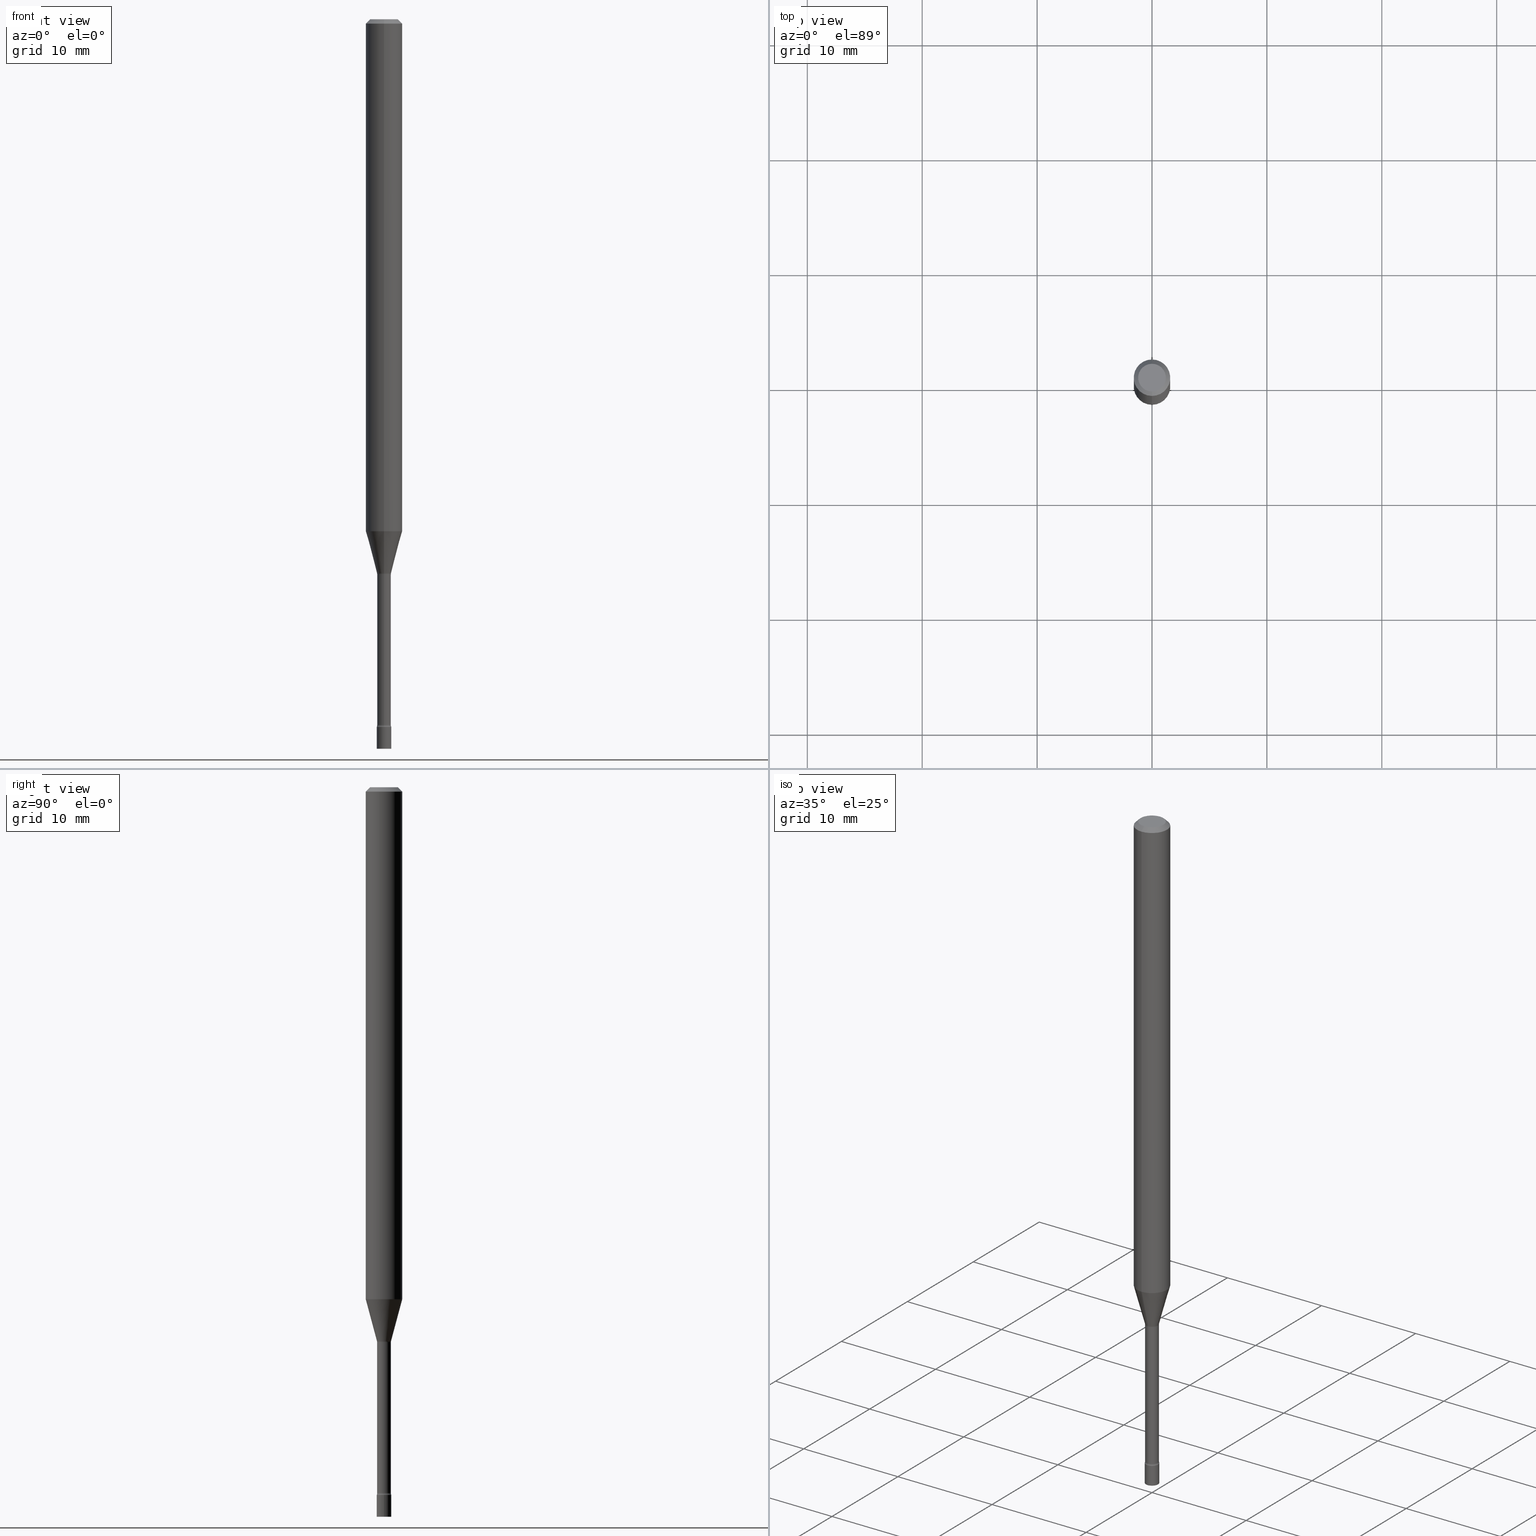
[diagram: canonical four-view strip — front | top / right | iso, engineering-drawing reading convention]
A machine part, canonical four-view strip (front | top / right | iso — engineering-drawing reading convention). The complete STEP part file that produces these views, byte-faithful:
ISO-10303-21;
HEADER;
FILE_DESCRIPTION (( 'STEP AP203' ),
    '1' );
FILE_NAME ('09665.STEP',
    '2024-03-09T00:34:02',
    ( '' ),
    ( '' ),
    'SwSTEP 2.0',
    'SolidWorks 2023',
    '' );
FILE_SCHEMA (( 'CONFIG_CONTROL_DESIGN' ));
ENDSEC;

DATA;
#1 = DIRECTION ( 'NONE',  ( -6.982962677686265922E-15, -1.000000000000000000, 4.370956789862821150E-15 ) ) ;
#2 = ADVANCED_FACE ( 'NONE', ( #114 ), #40, .T. ) ;
#3 = VECTOR ( 'NONE', #464, 39.37007874015748143 ) ;
#4 = DIRECTION ( 'NONE',  ( -2.445461215800332779E-29, 3.491492208706202500E-15, 1.000000000000000000 ) ) ;
#5 = CARTESIAN_POINT ( 'NONE',  ( 5.930261854998957144E-29, -8.466842246694628363E-15, -2.425000000000000266 ) ) ;
#6 = ORIENTED_EDGE ( 'NONE', *, *, #125, .T. ) ;
#7 = CARTESIAN_POINT ( 'NONE',  ( 0.000000000000000000, 0.000000000000000000, 0.000000000000000000 ) ) ;
#8 = VERTEX_POINT ( 'NONE', #197 ) ;
#9 = DIRECTION ( 'NONE',  ( 2.445461215800332779E-29, -3.491492208706202500E-15, -1.000000000000000000 ) ) ;
#10 = EDGE_CURVE ( 'NONE', #329, #120, #154, .T. ) ;
#11 = AXIS2_PLACEMENT_3D ( 'NONE', #16, #412, #128 ) ;
#12 = CARTESIAN_POINT ( 'NONE',  ( 5.930243448315807289E-29, -8.466868606112542088E-15, -2.425000000000000266 ) ) ;
#13 = VERTEX_POINT ( 'NONE', #268 ) ;
#14 = CARTESIAN_POINT ( 'NONE',  ( 3.668191823700506017E-31, -5.237238313059314424E-17, -0.01500000000000003067 ) ) ;
#15 = ADVANCED_FACE ( 'NONE', ( #480 ), #272, .T. ) ;
#16 = CARTESIAN_POINT ( 'NONE',  ( 7.070658513435405481E-46, -1.009508920058765553E-31, -2.891339460937380744E-17 ) ) ;
#17 = LINE ( 'NONE', #484, #362 ) ;
#18 = CARTESIAN_POINT ( 'NONE',  ( -1.676687031750274462E-16, -0.02401111260567061895, -1.898092501787273401 ) ) ;
#19 = CALENDAR_DATE ( 2024, 8, 3 ) ;
#20 = CARTESIAN_POINT ( 'NONE',  ( 0.000000000000000000, 0.000000000000000000, 0.000000000000000000 ) ) ;
#21 = AXIS2_PLACEMENT_3D ( 'NONE', #39, #406, #278 ) ;
#22 = CARTESIAN_POINT ( 'NONE',  ( 1.745740669422178045E-16, 0.02499999999999127226, -2.500000000000000000 ) ) ;
#23 = AXIS2_PLACEMENT_3D ( 'NONE', #369, #4, #44 ) ;
#24 = DATE_TIME_ROLE ( 'classification_date' ) ;
#25 = LENGTH_MEASURE_WITH_UNIT ( LENGTH_MEASURE( 0.02539999999999999897 ), #136 );
#26 = PERSON_AND_ORGANIZATION ( #104, #414 ) ;
#27 = DIRECTION ( 'NONE',  ( -2.445461215800332779E-29, 3.491492208706202500E-15, 1.000000000000000000 ) ) ;
#28 = AXIS2_PLACEMENT_3D ( 'NONE', #442, #324, #159 ) ;
#29 = EDGE_LOOP ( 'NONE', ( #440, #275, #458, #427 ) ) ;
#30 = ORIENTED_EDGE ( 'NONE', *, *, #222, .F. ) ;
#31 = ORIENTED_EDGE ( 'NONE', *, *, #60, .F. ) ;
#32 = CC_DESIGN_PERSON_AND_ORGANIZATION_ASSIGNMENT ( #477, #220, ( #42 ) ) ;
#33 = LINE ( 'NONE', #450, #45 ) ;
#34 = VERTEX_POINT ( 'NONE', #502 ) ;
#35 = CLOSED_SHELL ( 'NONE', ( #188, #15, #377, #59 ) ) ;
#36 = VERTEX_POINT ( 'NONE', #271 ) ;
#37 = APPROVAL_PERSON_ORGANIZATION ( #182, #92, #102 ) ;
#38 = DIRECTION ( 'NONE',  ( -2.445461215800332779E-29, 3.491492208706202500E-15, 1.000000000000000000 ) ) ;
#39 = CARTESIAN_POINT ( 'NONE',  ( 0.000000000000000000, 0.000000000000000000, 0.000000000000000000 ) ) ;
#40 = CYLINDRICAL_SURFACE ( 'NONE', #28, 0.06250000000000000000 ) ;
#41 = EDGE_CURVE ( 'NONE', #120, #295, #491, .T. ) ;
#42 = PRODUCT ( '09665', '09665', '', ( #503 ) ) ;
#43 = DIRECTION ( 'NONE',  ( -2.438088387897960049E-29, 3.491481338843145188E-15, 1.000000000000000000 ) ) ;
#44 = DIRECTION ( 'NONE',  ( -6.982962677686265133E-15, -1.000000000000000000, 0.000000000000000000 ) ) ;
#45 = VECTOR ( 'NONE', #520, 39.37007874015748143 ) ;
#46 = AXIS2_PLACEMENT_3D ( 'NONE', #417, #48, #372 ) ;
#47 = ORIENTED_EDGE ( 'NONE', *, *, #89, .T. ) ;
#48 = DIRECTION ( 'NONE',  ( -2.445461215800332779E-29, 3.491492208706202500E-15, 1.000000000000000000 ) ) ;
#49 = CARTESIAN_POINT ( 'NONE',  ( 4.364351673553919652E-16, 0.06249999999999995143, -0.01500000000000024751 ) ) ;
#50 = CARTESIAN_POINT ( 'NONE',  ( 7.070658513435405481E-46, -1.009508920058765553E-31, -2.891339460937380744E-17 ) ) ;
#51 = DIRECTION ( 'NONE',  ( -6.982962677686267499E-15, -1.000000000000000000, 0.000000000000000000 ) ) ;
#52 = VERTEX_POINT ( 'NONE', #387 ) ;
#53 = DIRECTION ( 'NONE',  ( 2.445461215800332779E-29, -3.491492208706202106E-15, -1.000000000000000000 ) ) ;
#54 = TOROIDAL_SURFACE ( 'NONE', #355, 0.03850000000000007583, 0.01499999999999998904 ) ;
#55 = EDGE_LOOP ( 'NONE', ( #79, #47, #407, #235 ) ) ;
#56 = APPLICATION_CONTEXT ( 'configuration controlled 3d designs of mechanical parts and assemblies' ) ;
#57 = FACE_OUTER_BOUND ( 'NONE', #228, .T. ) ;
#58 = LINE ( 'NONE', #219, #139 ) ;
#59 = ADVANCED_FACE ( 'NONE', ( #263 ), #96, .T. ) ;
#60 = EDGE_CURVE ( 'NONE', #397, #411, #260, .T. ) ;
#61 = PERSON_AND_ORGANIZATION ( #104, #414 ) ;
#62 = DIRECTION ( 'NONE',  ( -2.445461215800332779E-29, 3.491492208706202500E-15, 1.000000000000000000 ) ) ;
#63 = PERSON_AND_ORGANIZATION_ROLE ( 'classification_officer' ) ;
#64 = CIRCLE ( 'NONE', #308, 0.01500000000000001853 ) ;
#65 = CARTESIAN_POINT ( 'NONE',  ( 0.02500000000000000139, -8.641416313636785031E-15, -2.425000000000000266 ) ) ;
#66 = DATE_AND_TIME ( #264, #171 ) ;
#67 = CC_DESIGN_PERSON_AND_ORGANIZATION_ASSIGNMENT ( #149, #146, ( #454 ) ) ;
#68 =( NAMED_UNIT ( * ) PLANE_ANGLE_UNIT ( ) SI_UNIT ( $, .RADIAN. ) );
#69 = ORIENTED_EDGE ( 'NONE', *, *, #438, .T. ) ;
#70 = CARTESIAN_POINT ( 'NONE',  ( 5.914272527905344176E-29, -8.444013725215716224E-15, -2.418461651584689509 ) ) ;
#71 = AXIS2_PLACEMENT_3D ( 'NONE', #446, #241, #77 ) ;
#72 = CIRCLE ( 'NONE', #170, 0.01499999999999999424 ) ;
#73 = VECTOR ( 'NONE', #459, 39.37007874015748143 ) ;
#74 = DIMENSIONAL_EXPONENTS ( 1.000000000000000000, 0.000000000000000000, 0.000000000000000000, 0.000000000000000000, 0.000000000000000000, 0.000000000000000000, 0.000000000000000000 ) ;
#75 = CC_DESIGN_PERSON_AND_ORGANIZATION_ASSIGNMENT ( #511, #347, ( #454 ) ) ;
#76 = ORIENTED_EDGE ( 'NONE', *, *, #156, .T. ) ;
#77 = DIRECTION ( 'NONE',  ( -6.982962677686265922E-15, -1.000000000000000000, 3.483106191921935554E-15 ) ) ;
#78 = DIRECTION ( 'NONE',  ( -6.982962677686265922E-15, -1.000000000000000000, 0.000000000000000000 ) ) ;
#79 = ORIENTED_EDGE ( 'NONE', *, *, #305, .F. ) ;
#80 = CARTESIAN_POINT ( 'NONE',  ( 0.02500000000000000139, -1.745740669421566924E-16, 1.219044193948984123E-30 ) ) ;
#81 = EDGE_LOOP ( 'NONE', ( #274, #486, #312, #6 ) ) ;
#82 = DIRECTION ( 'NONE',  ( 2.445461215800332779E-29, -3.491492208706202500E-15, -1.000000000000000000 ) ) ;
#83 = AXIS2_PLACEMENT_3D ( 'NONE', #518, #319, #270 ) ;
#84 = AXIS2_PLACEMENT_3D ( 'NONE', #409, #364, #359 ) ;
#85 = ORIENTED_EDGE ( 'NONE', *, *, #504, .F. ) ;
#86 = DIRECTION ( 'NONE',  ( -1.000000000000000000, 6.982962677686265922E-15, -4.883557194083112340E-29 ) ) ;
#87 = DIRECTION ( 'NONE',  ( 1.000000000000000000, -6.982962677686265922E-15, 4.876176775795935793E-29 ) ) ;
#88 = ORIENTED_EDGE ( 'NONE', *, *, #517, .F. ) ;
#89 = EDGE_CURVE ( 'NONE', #8, #295, #273, .T. ) ;
#90 = CARTESIAN_POINT ( 'NONE',  ( 0.000000000000000000, 0.000000000000000000, 0.000000000000000000 ) ) ;
#91 = VERTEX_POINT ( 'NONE', #65 ) ;
#92 = APPROVAL ( #498, 'UNSPECIFIED' ) ;
#93 = CLOSED_SHELL ( 'NONE', ( #519, #351, #300, #441, #435, #331, #510, #2, #403, #415, #243, #334, #250, #229 ) ) ;
#94 = LOCAL_TIME ( 19, 34, 2.000000000000000000, #386 ) ;
#95 = COORDINATED_UNIVERSAL_TIME_OFFSET ( 5, 0, .BEHIND. ) ;
#96 = PLANE ( 'NONE',  #100 ) ;
#97 = MANIFOLD_SOLID_BREP ( 'Body-Move/Copy2[1]', #35 ) ;
#98 = DIRECTION ( 'NONE',  ( -2.445461215800333059E-29, 3.491492208706202106E-15, 1.000000000000000000 ) ) ;
#99 = COORDINATED_UNIVERSAL_TIME_OFFSET ( 5, 0, .BEHIND. ) ;
#100 = AXIS2_PLACEMENT_3D ( 'NONE', #22, #392, #180 ) ;
#101 = LOCAL_TIME ( 19, 34, 2.000000000000000000, #389 ) ;
#102 = APPROVAL_ROLE ( '' ) ;
#103 = EDGE_CURVE ( 'NONE', #13, #52, #303, .T. ) ;
#104 = PERSON ( 'UNSPECIFIED', 'UNSPECIFIED', 'UNSPECIFIED', ('UNSPECIFIED'), ('UNSPECIFIED'), ('UNSPECIFIED') ) ;
#105 = CALENDAR_DATE ( 2024, 8, 3 ) ;
#106 = ORIENTED_EDGE ( 'NONE', *, *, #479, .T. ) ;
#107 = EDGE_LOOP ( 'NONE', ( #371, #462, #166, #85 ) ) ;
#108 = CONICAL_SURFACE ( 'NONE', #413, 0.02401111260566398883, 0.2617993877991502960 ) ;
#109 = AXIS2_PLACEMENT_3D ( 'NONE', #430, #507, #310 ) ;
#110 = DIRECTION ( 'NONE',  ( -2.445461215800332779E-29, 3.491492208706202500E-15, 1.000000000000000000 ) ) ;
#111 = ORIENTED_EDGE ( 'NONE', *, *, #493, .T. ) ;
#112 = FACE_OUTER_BOUND ( 'NONE', #342, .T. ) ;
#113 = EDGE_CURVE ( 'NONE', #416, #122, #240, .T. ) ;
#114 = FACE_OUTER_BOUND ( 'NONE', #29, .T. ) ;
#115 = ORIENTED_EDGE ( 'NONE', *, *, #137, .T. ) ;
#116 = LINE ( 'NONE', #297, #348 ) ;
#117 = CIRCLE ( 'NONE', #256, 0.02401111260566398883 ) ;
#118 = CIRCLE ( 'NONE', #461, 0.01499999999999999424 ) ;
#119 = CARTESIAN_POINT ( 'NONE',  ( -1.640996229255686790E-16, -0.02350000000000852796, -2.418461651584689509 ) ) ;
#120 = VERTEX_POINT ( 'NONE', #142 ) ;
#121 = CARTESIAN_POINT ( 'NONE',  ( 4.290439475313700951E-29, -6.125648570174013165E-15, -1.754450018504814635 ) ) ;
#122 = VERTEX_POINT ( 'NONE', #301 ) ;
#123 = ORIENTED_EDGE ( 'NONE', *, *, #423, .F. ) ;
#124 = CARTESIAN_POINT ( 'NONE',  ( 3.316907271900976096E-16, 0.04749999999999999362, -1.803025772182315267E-16 ) ) ;
#125 = EDGE_CURVE ( 'NONE', #52, #36, #314, .T. ) ;
#126 = FACE_OUTER_BOUND ( 'NONE', #311, .T. ) ;
#127 = EDGE_LOOP ( 'NONE', ( #111, #115 ) ) ;
#128 = DIRECTION ( 'NONE',  ( -6.982962677686266711E-15, -1.000000000000000000, 3.491492208706202500E-15 ) ) ;
#129 = CIRCLE ( 'NONE', #178, 0.06250000000000000000 ) ;
#130 = LINE ( 'NONE', #49, #3 ) ;
#131 = CONICAL_SURFACE ( 'NONE', #224, 0.06250000000000000000, 0.7853981633974483900 ) ;
#132 = LINE ( 'NONE', #174, #203 ) ;
#133 = ORIENTED_EDGE ( 'NONE', *, *, #296, .F. ) ;
#134 = DIRECTION ( 'NONE',  ( 6.982962677686265922E-15, 1.000000000000000000, -3.483106191921935554E-15 ) ) ;
#135 = EDGE_LOOP ( 'NONE', ( #238, #151, #374, #206 ) ) ;
#136 =( LENGTH_UNIT ( ) NAMED_UNIT ( * ) SI_UNIT ( $, .METRE. ) );
#137 = EDGE_CURVE ( 'NONE', #279, #91, #298, .T. ) ;
#138 = CARTESIAN_POINT ( 'NONE',  ( 4.651220012893355916E-29, -6.640709477380055554E-15, -1.901974787463811323 ) ) ;
#139 = VECTOR ( 'NONE', #385, 39.37007874015748143 ) ;
#140 = APPROVAL_PERSON_ORGANIZATION ( #26, #344, #508 ) ;
#141 = CIRCLE ( 'NONE', #23, 0.02350000000000008332 ) ;
#142 = CARTESIAN_POINT ( 'NONE',  ( -1.640996229255807584E-16, -0.02350000000000664405, -1.901974787463811323 ) ) ;
#143 = DIRECTION ( 'NONE',  ( 1.000000000000000000, -7.105427357601001070E-15, 4.926315641659512311E-29 ) ) ;
#144 = DIRECTION ( 'NONE',  ( -1.807323732225330534E-15, -0.2588190451025182415, 0.9659258262890689783 ) ) ;
#145 = DATE_AND_TIME ( #432, #368 ) ;
#146 = PERSON_AND_ORGANIZATION_ROLE ( 'design_supplier' ) ;
#147 = AXIS2_PLACEMENT_3D ( 'NONE', #350, #433, #506 ) ;
#148 = CC_DESIGN_SECURITY_CLASSIFICATION ( #501, ( #454 ) ) ;
#149 = PERSON_AND_ORGANIZATION ( #104, #414 ) ;
#150 = EDGE_LOOP ( 'NONE', ( #448, #354, #123, #31 ) ) ;
#151 = ORIENTED_EDGE ( 'NONE', *, *, #305, .T. ) ;
#152 = ORIENTED_EDGE ( 'NONE', *, *, #422, .T. ) ;
#153 = ORIENTED_EDGE ( 'NONE', *, *, #313, .T. ) ;
#154 = LINE ( 'NONE', #316, #476 ) ;
#155 = DIRECTION ( 'NONE',  ( -2.445461215800332779E-29, 3.491492208706202500E-15, 1.000000000000000000 ) ) ;
#156 = EDGE_CURVE ( 'NONE', #361, #489, #72, .T. ) ;
#157 = CARTESIAN_POINT ( 'NONE',  ( 5.914254170850774673E-29, -8.444040013562677130E-15, -2.418461651584689509 ) ) ;
#158 = CYLINDRICAL_SURFACE ( 'NONE', #21, 0.02350000000000004516 ) ;
#159 = DIRECTION ( 'NONE',  ( -6.982962677686265922E-15, -1.000000000000000000, 3.491492208706202106E-15 ) ) ;
#160 = ORIENTED_EDGE ( 'NONE', *, *, #201, .F. ) ;
#161 = DIRECTION ( 'NONE',  ( -2.445468806185136597E-29, 3.491481338843145583E-15, 1.000000000000000000 ) ) ;
#162 = AXIS2_PLACEMENT_3D ( 'NONE', #138, #425, #469 ) ;
#163 = AXIS2_PLACEMENT_3D ( 'NONE', #121, #283, #384 ) ;
#164 = CARTESIAN_POINT ( 'NONE',  ( 5.930261854998957144E-29, -8.466842246694628363E-15, -2.425000000000000266 ) ) ;
#165 = EDGE_CURVE ( 'NONE', #395, #52, #130, .T. ) ;
#166 = ORIENTED_EDGE ( 'NONE', *, *, #493, .F. ) ;
#167 = CYLINDRICAL_SURFACE ( 'NONE', #315, 0.06250000000000000000 ) ;
#168 = EDGE_LOOP ( 'NONE', ( #88, #30 ) ) ;
#169 = PLANE ( 'NONE',  #356 ) ;
#170 = AXIS2_PLACEMENT_3D ( 'NONE', #349, #143, #382 ) ;
#171 = LOCAL_TIME ( 19, 34, 2.000000000000000000, #99 ) ;
#172 = ORIENTED_EDGE ( 'NONE', *, *, #41, .T. ) ;
#173 = CARTESIAN_POINT ( 'NONE',  ( 4.651220012893355916E-29, -6.640709477380055554E-15, -1.901974787463811323 ) ) ;
#174 = CARTESIAN_POINT ( 'NONE',  ( -4.364351673553916201E-16, -0.06250000000000000000, 2.182182630441376316E-16 ) ) ;
#175 = APPLICATION_PROTOCOL_DEFINITION ( 'international standard', 'config_control_design', 1994, #328 ) ;
#176 = CARTESIAN_POINT ( 'NONE',  ( 4.440892098500625669E-16, 0.06250000000000000000, -2.182182630441376316E-16 ) ) ;
#177 = APPROVAL_DATE_TIME ( #394, #344 ) ;
#178 = AXIS2_PLACEMENT_3D ( 'NONE', #233, #155, #1 ) ;
#179 = AXIS2_PLACEMENT_3D ( 'NONE', #207, #9, #463 ) ;
#180 = DIRECTION ( 'NONE',  ( -1.000000000000000000, 6.982962677686265922E-15, -4.876176775795935793E-29 ) ) ;
#181 = DATE_AND_TIME ( #105, #326 ) ;
#182 = PERSON_AND_ORGANIZATION ( #104, #414 ) ;
#183 = EDGE_CURVE ( 'NONE', #397, #120, #64, .T. ) ;
#184 = DIRECTION ( 'NONE',  ( -6.982962677686265133E-15, -1.000000000000000000, 0.000000000000000000 ) ) ;
#185 =( NAMED_UNIT ( * ) SI_UNIT ( $, .STERADIAN. ) SOLID_ANGLE_UNIT ( ) );
#186 = CIRCLE ( 'NONE', #71, 0.06250000000000000000 ) ;
#187 = CIRCLE ( 'NONE', #405, 0.02500000000000000139 ) ;
#188 = ADVANCED_FACE ( 'NONE', ( #210 ), #339, .T. ) ;
#189 = ORIENTED_EDGE ( 'NONE', *, *, #222, .T. ) ;
#190 = CARTESIAN_POINT ( 'NONE',  ( 4.641711597122200589E-29, -6.627175181393928875E-15, -1.898092501787273401 ) ) ;
#191 = ORIENTED_EDGE ( 'NONE', *, *, #156, .F. ) ;
#192 = ORIENTED_EDGE ( 'NONE', *, *, #259, .F. ) ;
#193 = ORIENTED_EDGE ( 'NONE', *, *, #451, .T. ) ;
#194 = VECTOR ( 'NONE', #98, 39.37007874015748143 ) ;
#195 = CARTESIAN_POINT ( 'NONE',  ( 1.669775429036829552E-16, 0.02349999999999336300, -1.901974787463811323 ) ) ;
#196 = TOROIDAL_SURFACE ( 'NONE', #363, 0.03850000000000000644, 0.01500000000000002373 ) ;
#197 = CARTESIAN_POINT ( 'NONE',  ( 3.073492131224375317E-16, 0.02401111260565735525, -1.898092501787273401 ) ) ;
#198 = EDGE_LOOP ( 'NONE', ( #269, #153, #284, #447 ) ) ;
#199 = EDGE_CURVE ( 'NONE', #231, #36, #58, .T. ) ;
#200 = FACE_OUTER_BOUND ( 'NONE', #150, .T. ) ;
#201 = EDGE_CURVE ( 'NONE', #122, #279, #17, .T. ) ;
#202 = CC_DESIGN_PERSON_AND_ORGANIZATION_ASSIGNMENT ( #307, #63, ( #501 ) ) ;
#203 = VECTOR ( 'NONE', #261, 39.37007874015748143 ) ;
#204 = AXIS2_PLACEMENT_3D ( 'NONE', #164, #294, #490 ) ;
#205 = CARTESIAN_POINT ( 'NONE',  ( 3.840629472727447874E-16, 0.04749999999999999362, -1.947592745229183872E-16 ) ) ;
#206 = ORIENTED_EDGE ( 'NONE', *, *, #340, .F. ) ;
#207 = CARTESIAN_POINT ( 'NONE',  ( 3.668191823700506017E-31, -5.237238313059314424E-17, -0.01500000000000003067 ) ) ;
#208 = DIRECTION ( 'NONE',  ( -2.445468806185136877E-29, 3.491481338843145188E-15, 1.000000000000000000 ) ) ;
#209 = DIRECTION ( 'NONE',  ( 1.000000000000000000, -6.982962677686254878E-15, 0.000000000000000000 ) ) ;
#210 = FACE_OUTER_BOUND ( 'NONE', #107, .T. ) ;
#211 = EDGE_CURVE ( 'NONE', #411, #36, #132, .T. ) ;
#212 = CC_DESIGN_PERSON_AND_ORGANIZATION_ASSIGNMENT ( #61, #262, ( #323 ) ) ;
#213 = ORIENTED_EDGE ( 'NONE', *, *, #282, .T. ) ;
#214 = DIRECTION ( 'NONE',  ( -2.445461215800332779E-29, 3.491492208706202500E-15, 1.000000000000000000 ) ) ;
#215 = CIRCLE ( 'NONE', #367, 0.02500000000000000139 ) ;
#216 = CC_DESIGN_APPROVAL ( #344, ( #454 ) ) ;
#217 = ORIENTED_EDGE ( 'NONE', *, *, #10, .T. ) ;
#218 = DIRECTION ( 'NONE',  ( -2.445461215800332779E-29, 3.491492208706202500E-15, 1.000000000000000000 ) ) ;
#219 = CARTESIAN_POINT ( 'NONE',  ( -4.287811248607203282E-16, -0.06250000000000005551, -0.01499999999999981209 ) ) ;
#220 = PERSON_AND_ORGANIZATION_ROLE ( 'design_owner' ) ;
#221 = COORDINATED_UNIVERSAL_TIME_OFFSET ( 5, 0, .BEHIND. ) ;
#222 = EDGE_CURVE ( 'NONE', #489, #34, #215, .T. ) ;
#223 = AXIS2_PLACEMENT_3D ( 'NONE', #474, #62, #431 ) ;
#224 = AXIS2_PLACEMENT_3D ( 'NONE', #14, #82, #134 ) ;
#225 = CARTESIAN_POINT ( 'NONE',  ( 6.113672015462842613E-29, -8.728703347107864943E-15, -2.500000000000000000 ) ) ;
#226 = DATE_TIME_ROLE ( 'creation_date' ) ;
#227 = DIRECTION ( 'NONE',  ( -2.445461215800332779E-29, 3.491492208706202500E-15, 1.000000000000000000 ) ) ;
#228 = EDGE_LOOP ( 'NONE', ( #418, #467, #293, #481 ) ) ;
#229 = ADVANCED_FACE ( 'NONE', ( #126 ), #378, .F. ) ;
#230 = APPROVAL_STATUS ( 'not_yet_approved' ) ;
#231 = VERTEX_POINT ( 'NONE', #346 ) ;
#232 = AXIS2_PLACEMENT_3D ( 'NONE', #322, #110, #78 ) ;
#233 = CARTESIAN_POINT ( 'NONE',  ( 4.290439475313700951E-29, -6.125648570174013165E-15, -1.754450018504814635 ) ) ;
#234 = FACE_OUTER_BOUND ( 'NONE', #380, .T. ) ;
#235 = ORIENTED_EDGE ( 'NONE', *, *, #183, .F. ) ;
#236 = EDGE_LOOP ( 'NONE', ( #400, #391 ) ) ;
#237 = DIRECTION ( 'NONE',  ( -2.445461215800333059E-29, 3.491492208706202106E-15, 1.000000000000000000 ) ) ;
#238 = ORIENTED_EDGE ( 'NONE', *, *, #258, .F. ) ;
#239 = PRODUCT_RELATED_PRODUCT_CATEGORY ( 'detail', '', ( #42 ) ) ;
#240 = CIRCLE ( 'NONE', #515, 0.02500000000000000139 ) ;
#241 = DIRECTION ( 'NONE',  ( -2.445461215800332779E-29, 3.491492208706202500E-15, 1.000000000000000000 ) ) ;
#242 = CONICAL_SURFACE ( 'NONE', #46, 0.02401111260566398883, 0.2617993877991502960 ) ;
#243 = ADVANCED_FACE ( 'NONE', ( #341 ), #388, .F. ) ;
#244 = FACE_OUTER_BOUND ( 'NONE', #478, .T. ) ;
#245 = DIRECTION ( 'NONE',  ( -2.445461215800332779E-29, 3.491492208706202500E-15, 1.000000000000000000 ) ) ;
#246 =( GEOMETRIC_REPRESENTATION_CONTEXT ( 3 ) GLOBAL_UNCERTAINTY_ASSIGNED_CONTEXT ( ( #357 ) ) GLOBAL_UNIT_ASSIGNED_CONTEXT ( ( #475, #68, #185 ) ) REPRESENTATION_CONTEXT ( 'NONE', 'WORKASPACE' ) );
#247 = ORIENTED_EDGE ( 'NONE', *, *, #296, .T. ) ;
#248 = FACE_OUTER_BOUND ( 'NONE', #135, .T. ) ;
#249 = ORIENTED_EDGE ( 'NONE', *, *, #360, .F. ) ;
#250 = ADVANCED_FACE ( 'NONE', ( #112 ), #158, .T. ) ;
#251 = CARTESIAN_POINT ( 'NONE',  ( 5.930243448315807289E-29, -8.466868606112542088E-15, -2.425000000000000266 ) ) ;
#252 = DIRECTION ( 'NONE',  ( -1.000000000000000000, 6.982962677686265922E-15, -4.883557194083112340E-29 ) ) ;
#253 = ORIENTED_EDGE ( 'NONE', *, *, #438, .F. ) ;
#254 = ORIENTED_EDGE ( 'NONE', *, *, #199, .T. ) ;
#255 = FACE_OUTER_BOUND ( 'NONE', #396, .T. ) ;
#256 = AXIS2_PLACEMENT_3D ( 'NONE', #190, #27, #365 ) ;
#257 = CC_DESIGN_APPROVAL ( #92, ( #323 ) ) ;
#258 = EDGE_CURVE ( 'NONE', #8, #13, #33, .T. ) ;
#259 = EDGE_CURVE ( 'NONE', #295, #120, #512, .T. ) ;
#260 = LINE ( 'NONE', #18, #424 ) ;
#261 = DIRECTION ( 'NONE',  ( -2.445461215800333059E-29, 3.491492208706202106E-15, 1.000000000000000000 ) ) ;
#262 = PERSON_AND_ORGANIZATION_ROLE ( 'creator' ) ;
#263 = FACE_OUTER_BOUND ( 'NONE', #236, .T. ) ;
#264 = CALENDAR_DATE ( 2024, 8, 3 ) ;
#265 = AXIS2_PLACEMENT_3D ( 'NONE', #20, #227, #299 ) ;
#266 = APPROVAL_STATUS ( 'not_yet_approved' ) ;
#267 = DATE_AND_TIME ( #434, #101 ) ;
#268 = CARTESIAN_POINT ( 'NONE',  ( 4.440892098501052147E-16, 0.06249999999999384520, -1.754450018504814857 ) ) ;
#269 = ORIENTED_EDGE ( 'NONE', *, *, #383, .T. ) ;
#270 = DIRECTION ( 'NONE',  ( -6.982962677686266711E-15, -1.000000000000000000, 3.491492208706202500E-15 ) ) ;
#271 = CARTESIAN_POINT ( 'NONE',  ( -4.364351673553912750E-16, -0.06250000000000005551, -0.01499999999999981209 ) ) ;
#272 = PLANE ( 'NONE',  #335 ) ;
#273 = CIRCLE ( 'NONE', #147, 0.01500000000000001853 ) ;
#274 = ORIENTED_EDGE ( 'NONE', *, *, #199, .F. ) ;
#275 = ORIENTED_EDGE ( 'NONE', *, *, #340, .T. ) ;
#276 = CARTESIAN_POINT ( 'NONE',  ( -0.02500000000000000139, -8.420137112961222238E-15, -2.425000000000000266 ) ) ;
#277 = MANIFOLD_SOLID_BREP ( 'Body-Move/Copy2[2]', #93 ) ;
#278 = DIRECTION ( 'NONE',  ( -6.982962677686265133E-15, -1.000000000000000000, 3.491492208706202500E-15 ) ) ;
#279 = VERTEX_POINT ( 'NONE', #276 ) ;
#280 = CIRCLE ( 'NONE', #483, 0.02350000000000008332 ) ;
#281 = DIRECTION ( 'NONE',  ( -6.982962677686265133E-15, -1.000000000000000000, 0.000000000000000000 ) ) ;
#282 = EDGE_CURVE ( 'NONE', #36, #52, #186, .T. ) ;
#283 = DIRECTION ( 'NONE',  ( -2.445461215800332779E-29, 3.491492208706202500E-15, 1.000000000000000000 ) ) ;
#284 = ORIENTED_EDGE ( 'NONE', *, *, #41, .F. ) ;
#285 = DIRECTION ( 'NONE',  ( -2.445468806185136597E-29, 3.491481338843145583E-15, 1.000000000000000000 ) ) ;
#286 = PRODUCT_DEFINITION_SHAPE ( 'NONE', 'NONE',  #323 ) ;
#287 = AXIS2_PLACEMENT_3D ( 'NONE', #5, #161, #320 ) ;
#288 = CARTESIAN_POINT ( 'NONE',  ( 1.745740669422159556E-16, 0.02499999999999153247, -2.425000000000000266 ) ) ;
#289 = CIRCLE ( 'NONE', #163, 0.06250000000000000000 ) ;
#290 = CARTESIAN_POINT ( 'NONE',  ( -4.364351673553489230E-16, -0.06250000000000614786, -1.754450018504814190 ) ) ;
#291 = CARTESIAN_POINT ( 'NONE',  ( -2.688440630908747196E-16, -0.03850000000000664696, -1.901974787463811323 ) ) ;
#292 = CYLINDRICAL_SURFACE ( 'NONE', #265, 0.02350000000000004516 ) ;
#293 = ORIENTED_EDGE ( 'NONE', *, *, #282, .F. ) ;
#294 = DIRECTION ( 'NONE',  ( -2.445468806185136597E-29, 3.491481338843145583E-15, 1.000000000000000000 ) ) ;
#295 = VERTEX_POINT ( 'NONE', #195 ) ;
#296 = EDGE_CURVE ( 'NONE', #361, #329, #280, .T. ) ;
#297 = CARTESIAN_POINT ( 'NONE',  ( 1.669775429036238399E-16, 0.02350000000000004516, -8.205006690459591386E-17 ) ) ;
#298 = CIRCLE ( 'NONE', #287, 0.02500000000000000139 ) ;
#299 = DIRECTION ( 'NONE',  ( -6.982962677686265133E-15, -1.000000000000000000, 3.491492208706202500E-15 ) ) ;
#300 = ADVANCED_FACE ( 'NONE', ( #234 ), #54, .F. ) ;
#301 = CARTESIAN_POINT ( 'NONE',  ( -0.02500000000000000139, -8.420137112961222238E-15, -2.500000000000000000 ) ) ;
#302 = SECURITY_CLASSIFICATION_LEVEL ( 'unclassified' ) ;
#303 = LINE ( 'NONE', #176, #194 ) ;
#304 = PERSON_AND_ORGANIZATION ( #104, #414 ) ;
#305 = EDGE_CURVE ( 'NONE', #8, #397, #117, .T. ) ;
#306 = DIRECTION ( 'NONE',  ( -2.445461215800332779E-29, 3.491492208706202106E-15, 1.000000000000000000 ) ) ;
#307 = PERSON_AND_ORGANIZATION ( #104, #414 ) ;
#308 = AXIS2_PLACEMENT_3D ( 'NONE', #291, #252, #51 ) ;
#309 = CC_DESIGN_APPROVAL ( #373, ( #501 ) ) ;
#310 = DIRECTION ( 'NONE',  ( 1.000000000000000000, 0.000000000000000000, 0.000000000000000000 ) ) ;
#311 = EDGE_LOOP ( 'NONE', ( #505, #249, #332, #172 ) ) ;
#312 = ORIENTED_EDGE ( 'NONE', *, *, #165, .T. ) ;
#313 = EDGE_CURVE ( 'NONE', #361, #295, #116, .T. ) ;
#314 = CIRCLE ( 'NONE', #404, 0.06250000000000000000 ) ;
#315 = AXIS2_PLACEMENT_3D ( 'NONE', #7, #218, #327 ) ;
#316 = CARTESIAN_POINT ( 'NONE',  ( -1.640996229256275477E-16, -0.02350000000000004516, 8.205006690459591386E-17 ) ) ;
#317 = CARTESIAN_POINT ( 'NONE',  ( 1.723066134218837359E-16, 0.02349999999999163869, -2.418461651584689509 ) ) ;
#318 = ADVANCED_BREP_SHAPE_REPRESENTATION ( '09665', ( #97, #277, #109 ), #246 ) ;
#319 = DIRECTION ( 'NONE',  ( -2.445461215800332779E-29, 3.491492208706202500E-15, 1.000000000000000000 ) ) ;
#320 = DIRECTION ( 'NONE',  ( 1.000000000000000000, -6.982962677686254878E-15, 0.000000000000000000 ) ) ;
#321 = CARTESIAN_POINT ( 'NONE',  ( 4.641711597122200589E-29, -6.627175181393928875E-15, -1.898092501787273401 ) ) ;
#322 = CARTESIAN_POINT ( 'NONE',  ( 4.651205576172831719E-29, -6.640730151585532427E-15, -1.901974787463811323 ) ) ;
#323 = PRODUCT_DEFINITION ( 'UNKNOWN', '', #454, #376 ) ;
#324 = DIRECTION ( 'NONE',  ( -2.445461215800332779E-29, 3.491492208706202500E-15, 1.000000000000000000 ) ) ;
#325 = DIRECTION ( 'NONE',  ( -2.445461215800333059E-29, 3.491492208706202106E-15, 1.000000000000000000 ) ) ;
#326 = LOCAL_TIME ( 19, 34, 2.000000000000000000, #95 ) ;
#327 = DIRECTION ( 'NONE',  ( -6.982962677686265922E-15, -1.000000000000000000, 3.491492208706202106E-15 ) ) ;
#328 = APPLICATION_CONTEXT ( 'configuration controlled 3d designs of mechanical parts and assemblies' ) ;
#329 = VERTEX_POINT ( 'NONE', #119 ) ;
#330 = LINE ( 'NONE', #80, #73 ) ;
#331 = ADVANCED_FACE ( 'NONE', ( #200 ), #108, .T. ) ;
#332 = ORIENTED_EDGE ( 'NONE', *, *, #183, .T. ) ;
#333 = DIRECTION ( 'NONE',  ( -6.982962677686262766E-15, -1.000000000000000000, 0.000000000000000000 ) ) ;
#334 = ADVANCED_FACE ( 'NONE', ( #455 ), #499, .F. ) ;
#335 = AXIS2_PLACEMENT_3D ( 'NONE', #401, #43, #87 ) ;
#336 = CIRCLE ( 'NONE', #204, 0.02500000000000000139 ) ;
#337 = ORIENTED_EDGE ( 'NONE', *, *, #504, .T. ) ;
#338 = CARTESIAN_POINT ( 'NONE',  ( -2.688440630908625909E-16, -0.03850000000000851352, -2.418461651584689509 ) ) ;
#339 = CYLINDRICAL_SURFACE ( 'NONE', #398, 0.02500000000000000139 ) ;
#340 = EDGE_CURVE ( 'NONE', #13, #411, #129, .T. ) ;
#341 = FACE_OUTER_BOUND ( 'NONE', #168, .T. ) ;
#342 = EDGE_LOOP ( 'NONE', ( #465, #247, #217, #192 ) ) ;
#343 = DIRECTION ( 'NONE',  ( -2.445468806185136597E-29, 3.491481338843145583E-15, 1.000000000000000000 ) ) ;
#344 = APPROVAL ( #230, 'UNSPECIFIED' ) ;
#345 = DIRECTION ( 'NONE',  ( -2.445468806185136597E-29, 3.491481338843145583E-15, 1.000000000000000000 ) ) ;
#346 = CARTESIAN_POINT ( 'NONE',  ( -3.773273898774340269E-16, -0.04749999999999999362, 1.369324853041708217E-16 ) ) ;
#347 = PERSON_AND_ORGANIZATION_ROLE ( 'creator' ) ;
#348 = VECTOR ( 'NONE', #325, 39.37007874015748143 ) ;
#349 = CARTESIAN_POINT ( 'NONE',  ( 2.735589532676981763E-16, 0.03849999999999163119, -2.418461651584689509 ) ) ;
#350 = CARTESIAN_POINT ( 'NONE',  ( 2.735589532676850615E-16, 0.03849999999999335898, -1.901974787463811323 ) ) ;
#351 = ADVANCED_FACE ( 'NONE', ( #449 ), #292, .T. ) ;
#352 = APPROVAL_DATE_TIME ( #181, #92 ) ;
#353 = DIRECTION ( 'NONE',  ( -2.445461215800332779E-29, 3.491492208706202500E-15, 1.000000000000000000 ) ) ;
#354 = ORIENTED_EDGE ( 'NONE', *, *, #258, .T. ) ;
#355 = AXIS2_PLACEMENT_3D ( 'NONE', #70, #353, #509 ) ;
#356 = AXIS2_PLACEMENT_3D ( 'NONE', #124, #53, #375 ) ;
#357 = UNCERTAINTY_MEASURE_WITH_UNIT (LENGTH_MEASURE( 1.000000000000000082E-05 ), #475, 'distance_accuracy_value', 'NONE');
#358 = DIRECTION ( 'NONE',  ( -6.982962677686265133E-15, -1.000000000000000000, 0.000000000000000000 ) ) ;
#359 = DIRECTION ( 'NONE',  ( 1.000000000000000000, -6.982962677686267499E-15, 4.876176775795936353E-29 ) ) ;
#360 = EDGE_CURVE ( 'NONE', #397, #8, #460, .T. ) ;
#361 = VERTEX_POINT ( 'NONE', #317 ) ;
#362 = VECTOR ( 'NONE', #208, 39.37007874015748143 ) ;
#363 = AXIS2_PLACEMENT_3D ( 'NONE', #173, #421, #381 ) ;
#364 = DIRECTION ( 'NONE',  ( -2.445468806185136597E-29, 3.491481338843145583E-15, 1.000000000000000000 ) ) ;
#365 = DIRECTION ( 'NONE',  ( -6.982962677686265133E-15, -1.000000000000000000, 0.000000000000000000 ) ) ;
#366 = ORIENTED_EDGE ( 'NONE', *, *, #517, .T. ) ;
#367 = AXIS2_PLACEMENT_3D ( 'NONE', #12, #488, #497 ) ;
#368 = LOCAL_TIME ( 19, 34, 2.000000000000000000, #221 ) ;
#369 = CARTESIAN_POINT ( 'NONE',  ( 5.914254170850774673E-29, -8.444040013562677130E-15, -2.418461651584689509 ) ) ;
#370 = DIRECTION ( 'NONE',  ( -6.982962677686265922E-15, -1.000000000000000000, 3.483106191921935554E-15 ) ) ;
#371 = ORIENTED_EDGE ( 'NONE', *, *, #113, .T. ) ;
#372 = DIRECTION ( 'NONE',  ( -6.982962677686265133E-15, -1.000000000000000000, 0.000000000000000000 ) ) ;
#373 = APPROVAL ( #266, 'UNSPECIFIED' ) ;
#374 = ORIENTED_EDGE ( 'NONE', *, *, #60, .T. ) ;
#375 = DIRECTION ( 'NONE',  ( 6.982962677686265922E-15, 1.000000000000000000, -3.491492208706202106E-15 ) ) ;
#376 = DESIGN_CONTEXT ( 'detailed design', #56, 'design' ) ;
#377 = ADVANCED_FACE ( 'NONE', ( #244 ), #408, .T. ) ;
#378 = TOROIDAL_SURFACE ( 'NONE', #162, 0.03850000000000000644, 0.01500000000000002373 ) ;
#379 = APPROVAL_PERSON_ORGANIZATION ( #304, #373, #439 ) ;
#380 = EDGE_LOOP ( 'NONE', ( #133, #76, #189, #420 ) ) ;
#381 = DIRECTION ( 'NONE',  ( -6.982962677686265922E-15, -1.000000000000000000, 3.491492208706202500E-15 ) ) ;
#382 = DIRECTION ( 'NONE',  ( 7.105427357600997914E-15, 1.000000000000000000, 0.000000000000000000 ) ) ;
#383 = EDGE_CURVE ( 'NONE', #329, #361, #141, .T. ) ;
#384 = DIRECTION ( 'NONE',  ( -6.982962677686265922E-15, -1.000000000000000000, 4.370956789862821150E-15 ) ) ;
#385 = DIRECTION ( 'NONE',  ( -4.851104656540964275E-15, -0.7071067811865500152, -0.7071067811865450192 ) ) ;
#386 = COORDINATED_UNIVERSAL_TIME_OFFSET ( 5, 0, .BEHIND. ) ;
#387 = CARTESIAN_POINT ( 'NONE',  ( 4.440892098501058063E-16, 0.06249999999999995143, -0.01500000000000024751 ) ) ;
#388 = PLANE ( 'NONE',  #453 ) ;
#389 = COORDINATED_UNIVERSAL_TIME_OFFSET ( 5, 0, .BEHIND. ) ;
#390 = AXIS2_PLACEMENT_3D ( 'NONE', #50, #245, #456 ) ;
#391 = ORIENTED_EDGE ( 'NONE', *, *, #479, .F. ) ;
#392 = DIRECTION ( 'NONE',  ( 2.438088387897960049E-29, -3.491481338843145188E-15, -1.000000000000000000 ) ) ;
#393 = APPROVAL_DATE_TIME ( #66, #373 ) ;
#394 = DATE_AND_TIME ( #19, #94 ) ;
#395 = VERTEX_POINT ( 'NONE', #205 ) ;
#396 = EDGE_LOOP ( 'NONE', ( #152, #69 ) ) ;
#397 = VERTEX_POINT ( 'NONE', #487 ) ;
#398 = AXIS2_PLACEMENT_3D ( 'NONE', #90, #343, #429 ) ;
#399 = CIRCLE ( 'NONE', #11, 0.04749999999999999362 ) ;
#400 = ORIENTED_EDGE ( 'NONE', *, *, #113, .F. ) ;
#401 = CARTESIAN_POINT ( 'NONE',  ( 5.930261854998957144E-29, -8.466842246694628363E-15, -2.425000000000000266 ) ) ;
#402 = EDGE_LOOP ( 'NONE', ( #191, #482, #193, #366 ) ) ;
#403 = ADVANCED_FACE ( 'NONE', ( #468 ), #131, .T. ) ;
#404 = AXIS2_PLACEMENT_3D ( 'NONE', #471, #516, #370 ) ;
#405 = AXIS2_PLACEMENT_3D ( 'NONE', #251, #214, #419 ) ;
#406 = DIRECTION ( 'NONE',  ( -2.445461215800332779E-29, 3.491492208706202500E-15, 1.000000000000000000 ) ) ;
#407 = ORIENTED_EDGE ( 'NONE', *, *, #259, .T. ) ;
#408 = CYLINDRICAL_SURFACE ( 'NONE', #84, 0.02500000000000000139 ) ;
#409 = CARTESIAN_POINT ( 'NONE',  ( 0.000000000000000000, 0.000000000000000000, 0.000000000000000000 ) ) ;
#410 = DIRECTION ( 'NONE',  ( -2.445461215800332779E-29, 3.491492208706202500E-15, 1.000000000000000000 ) ) ;
#411 = VERTEX_POINT ( 'NONE', #290 ) ;
#412 = DIRECTION ( 'NONE',  ( -2.445461215800332779E-29, 3.491492208706202500E-15, 1.000000000000000000 ) ) ;
#413 = AXIS2_PLACEMENT_3D ( 'NONE', #452, #410, #281 ) ;
#414 = ORGANIZATION ( 'UNSPECIFIED', 'UNSPECIFIED', '' ) ;
#415 = ADVANCED_FACE ( 'NONE', ( #255 ), #169, .F. ) ;
#416 = VERTEX_POINT ( 'NONE', #428 ) ;
#417 = CARTESIAN_POINT ( 'NONE',  ( 4.641711597122200589E-29, -6.627175181393928875E-15, -1.898092501787273401 ) ) ;
#418 = ORIENTED_EDGE ( 'NONE', *, *, #423, .T. ) ;
#419 = DIRECTION ( 'NONE',  ( -6.982962677686265133E-15, -1.000000000000000000, 0.000000000000000000 ) ) ;
#420 = ORIENTED_EDGE ( 'NONE', *, *, #451, .F. ) ;
#421 = DIRECTION ( 'NONE',  ( -2.445461215800332779E-29, 3.491492208706202500E-15, 1.000000000000000000 ) ) ;
#422 = EDGE_CURVE ( 'NONE', #395, #231, #399, .T. ) ;
#423 = EDGE_CURVE ( 'NONE', #411, #13, #289, .T. ) ;
#424 = VECTOR ( 'NONE', #144, 39.37007874015748143 ) ;
#425 = DIRECTION ( 'NONE',  ( -2.445461215800332779E-29, 3.491492208706202500E-15, 1.000000000000000000 ) ) ;
#426 = CIRCLE ( 'NONE', #390, 0.04749999999999999362 ) ;
#427 = ORIENTED_EDGE ( 'NONE', *, *, #125, .F. ) ;
#428 = CARTESIAN_POINT ( 'NONE',  ( 0.02500000000000000139, -8.903277414050021610E-15, -2.500000000000000000 ) ) ;
#429 = DIRECTION ( 'NONE',  ( 1.000000000000000000, -6.982962677686267499E-15, 4.876176775795936353E-29 ) ) ;
#430 = CARTESIAN_POINT ( 'NONE',  ( 0.000000000000000000, 0.000000000000000000, 0.000000000000000000 ) ) ;
#431 = DIRECTION ( 'NONE',  ( -6.982962677686265922E-15, -1.000000000000000000, 0.000000000000000000 ) ) ;
#432 = CALENDAR_DATE ( 2024, 8, 3 ) ;
#433 = DIRECTION ( 'NONE',  ( 1.000000000000000000, -7.105427357601001070E-15, 4.926315641659512311E-29 ) ) ;
#434 = CALENDAR_DATE ( 2024, 8, 3 ) ;
#435 = ADVANCED_FACE ( 'NONE', ( #57 ), #167, .T. ) ;
#436 = AXIS2_PLACEMENT_3D ( 'NONE', #321, #38, #358 ) ;
#437 = SHAPE_DEFINITION_REPRESENTATION ( #286, #318 ) ;
#438 = EDGE_CURVE ( 'NONE', #231, #395, #426, .T. ) ;
#439 = APPROVAL_ROLE ( '' ) ;
#440 = ORIENTED_EDGE ( 'NONE', *, *, #103, .F. ) ;
#441 = ADVANCED_FACE ( 'NONE', ( #496 ), #443, .T. ) ;
#442 = CARTESIAN_POINT ( 'NONE',  ( 0.000000000000000000, 0.000000000000000000, 0.000000000000000000 ) ) ;
#443 = CONICAL_SURFACE ( 'NONE', #179, 0.06250000000000000000, 0.7853981633974483900 ) ;
#444 = DIRECTION ( 'NONE',  ( -2.445461215800332779E-29, 3.491492208706202500E-15, 1.000000000000000000 ) ) ;
#445 = ORIENTED_EDGE ( 'NONE', *, *, #165, .F. ) ;
#446 = CARTESIAN_POINT ( 'NONE',  ( 3.668191823700506017E-31, -5.237238313059314424E-17, -0.01500000000000003067 ) ) ;
#447 = ORIENTED_EDGE ( 'NONE', *, *, #10, .F. ) ;
#448 = ORIENTED_EDGE ( 'NONE', *, *, #360, .T. ) ;
#449 = FACE_OUTER_BOUND ( 'NONE', #198, .T. ) ;
#450 = CARTESIAN_POINT ( 'NONE',  ( 1.706092163947695529E-16, 0.02401111260565735872, -1.898092501787273401 ) ) ;
#451 = EDGE_CURVE ( 'NONE', #329, #34, #118, .T. ) ;
#452 = CARTESIAN_POINT ( 'NONE',  ( 4.641711597122200589E-29, -6.627175181393928875E-15, -1.898092501787273401 ) ) ;
#453 = AXIS2_PLACEMENT_3D ( 'NONE', #288, #306, #513 ) ;
#454 = PRODUCT_DEFINITION_FORMATION_WITH_SPECIFIED_SOURCE ( 'ANY', '', #42, .NOT_KNOWN. ) ;
#455 = FACE_OUTER_BOUND ( 'NONE', #402, .T. ) ;
#456 = DIRECTION ( 'NONE',  ( -6.982962677686266711E-15, -1.000000000000000000, 3.491492208706202500E-15 ) ) ;
#457 = CC_DESIGN_DATE_AND_TIME_ASSIGNMENT ( #267, #24, ( #501 ) ) ;
#458 = ORIENTED_EDGE ( 'NONE', *, *, #211, .T. ) ;
#459 = DIRECTION ( 'NONE',  ( -2.445468806185136877E-29, 3.491481338843145188E-15, 1.000000000000000000 ) ) ;
#460 = CIRCLE ( 'NONE', #436, 0.02401111260566398883 ) ;
#461 = AXIS2_PLACEMENT_3D ( 'NONE', #338, #86, #333 ) ;
#462 = ORIENTED_EDGE ( 'NONE', *, *, #201, .T. ) ;
#463 = DIRECTION ( 'NONE',  ( 6.982962677686265922E-15, 1.000000000000000000, -3.483106191921935554E-15 ) ) ;
#464 = DIRECTION ( 'NONE',  ( 4.937700262164548042E-15, 0.7071067811865451302, -0.7071067811865499042 ) ) ;
#465 = ORIENTED_EDGE ( 'NONE', *, *, #313, .F. ) ;
#466 = CARTESIAN_POINT ( 'NONE',  ( 1.776356839400842949E-16, 0.02499999999999152900, -2.425000000000000266 ) ) ;
#467 = ORIENTED_EDGE ( 'NONE', *, *, #103, .T. ) ;
#468 = FACE_OUTER_BOUND ( 'NONE', #81, .T. ) ;
#469 = DIRECTION ( 'NONE',  ( -6.982962677686265922E-15, -1.000000000000000000, 3.491492208706202500E-15 ) ) ;
#470 = CIRCLE ( 'NONE', #492, 0.02500000000000000139 ) ;
#471 = CARTESIAN_POINT ( 'NONE',  ( 3.668191823700506017E-31, -5.237238313059314424E-17, -0.01500000000000003067 ) ) ;
#472 = APPLICATION_PROTOCOL_DEFINITION ( 'international standard', 'config_control_design', 1994, #56 ) ;
#473 = CC_DESIGN_DATE_AND_TIME_ASSIGNMENT ( #145, #226, ( #323 ) ) ;
#474 = CARTESIAN_POINT ( 'NONE',  ( 4.651205576172831719E-29, -6.640730151585532427E-15, -1.901974787463811323 ) ) ;
#475 =( CONVERSION_BASED_UNIT ( 'INCH', #25 ) LENGTH_UNIT ( ) NAMED_UNIT ( #74 ) );
#476 = VECTOR ( 'NONE', #237, 39.37007874015748143 ) ;
#477 = PERSON_AND_ORGANIZATION ( #104, #414 ) ;
#478 = EDGE_LOOP ( 'NONE', ( #160, #106, #337, #495 ) ) ;
#479 = EDGE_CURVE ( 'NONE', #122, #416, #470, .T. ) ;
#480 = FACE_OUTER_BOUND ( 'NONE', #127, .T. ) ;
#481 = ORIENTED_EDGE ( 'NONE', *, *, #211, .F. ) ;
#482 = ORIENTED_EDGE ( 'NONE', *, *, #383, .F. ) ;
#483 = AXIS2_PLACEMENT_3D ( 'NONE', #157, #444, #184 ) ;
#484 = CARTESIAN_POINT ( 'NONE',  ( -0.02500000000000000139, 1.776356839400250563E-16, -1.229733772563726656E-30 ) ) ;
#485 = FACE_OUTER_BOUND ( 'NONE', #55, .T. ) ;
#486 = ORIENTED_EDGE ( 'NONE', *, *, #422, .F. ) ;
#487 = CARTESIAN_POINT ( 'NONE',  ( -1.676687031750274462E-16, -0.02401111260567061895, -1.898092501787273401 ) ) ;
#488 = DIRECTION ( 'NONE',  ( -2.445461215800332779E-29, 3.491492208706202500E-15, 1.000000000000000000 ) ) ;
#489 = VERTEX_POINT ( 'NONE', #466 ) ;
#490 = DIRECTION ( 'NONE',  ( 1.000000000000000000, -6.982962677686254878E-15, 0.000000000000000000 ) ) ;
#491 = CIRCLE ( 'NONE', #223, 0.02350000000000000352 ) ;
#492 = AXIS2_PLACEMENT_3D ( 'NONE', #494, #285, #209 ) ;
#493 = EDGE_CURVE ( 'NONE', #91, #279, #336, .T. ) ;
#494 = CARTESIAN_POINT ( 'NONE',  ( 6.113672015462842613E-29, -8.728703347107864943E-15, -2.500000000000000000 ) ) ;
#495 = ORIENTED_EDGE ( 'NONE', *, *, #137, .F. ) ;
#496 = FACE_OUTER_BOUND ( 'NONE', #514, .T. ) ;
#497 = DIRECTION ( 'NONE',  ( -6.982962677686265133E-15, -1.000000000000000000, 0.000000000000000000 ) ) ;
#498 = APPROVAL_STATUS ( 'not_yet_approved' ) ;
#499 = TOROIDAL_SURFACE ( 'NONE', #83, 0.03850000000000007583, 0.01499999999999998904 ) ;
#500 = DIRECTION ( 'NONE',  ( 1.000000000000000000, -6.982962677686254878E-15, 0.000000000000000000 ) ) ;
#501 = SECURITY_CLASSIFICATION ( '', '', #302 ) ;
#502 = CARTESIAN_POINT ( 'NONE',  ( -1.745740669420973060E-16, -0.02500000000000846337, -2.425000000000000266 ) ) ;
#503 = MECHANICAL_CONTEXT ( 'NONE', #328, 'mechanical' ) ;
#504 = EDGE_CURVE ( 'NONE', #416, #91, #330, .T. ) ;
#505 = ORIENTED_EDGE ( 'NONE', *, *, #89, .F. ) ;
#506 = DIRECTION ( 'NONE',  ( 7.105427357601001859E-15, 1.000000000000000000, 0.000000000000000000 ) ) ;
#507 = DIRECTION ( 'NONE',  ( 0.000000000000000000, 0.000000000000000000, 1.000000000000000000 ) ) ;
#508 = APPROVAL_ROLE ( '' ) ;
#509 = DIRECTION ( 'NONE',  ( -6.982962677686266711E-15, -1.000000000000000000, 3.491492208706202500E-15 ) ) ;
#510 = ADVANCED_FACE ( 'NONE', ( #248 ), #242, .T. ) ;
#511 = PERSON_AND_ORGANIZATION ( #104, #414 ) ;
#512 = CIRCLE ( 'NONE', #232, 0.02350000000000000352 ) ;
#513 = DIRECTION ( 'NONE',  ( -6.982962677686265922E-15, -1.000000000000000000, 3.491492208706202106E-15 ) ) ;
#514 = EDGE_LOOP ( 'NONE', ( #253, #254, #213, #445 ) ) ;
#515 = AXIS2_PLACEMENT_3D ( 'NONE', #225, #345, #500 ) ;
#516 = DIRECTION ( 'NONE',  ( -2.445461215800332779E-29, 3.491492208706202500E-15, 1.000000000000000000 ) ) ;
#517 = EDGE_CURVE ( 'NONE', #34, #489, #187, .T. ) ;
#518 = CARTESIAN_POINT ( 'NONE',  ( 5.914272527905344176E-29, -8.444013725215716224E-15, -2.418461651584689509 ) ) ;
#519 = ADVANCED_FACE ( 'NONE', ( #485 ), #196, .F. ) ;
#520 = DIRECTION ( 'NONE',  ( 1.839019923739600710E-15, 0.2588190451025250138, 0.9659258262890670910 ) ) ;
ENDSEC;
END-ISO-10303-21;
